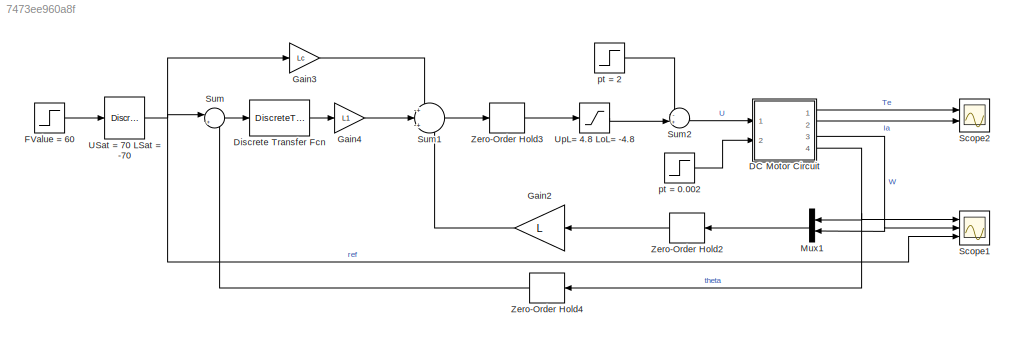
MODEL slx_7473ee960a8f
KIND model
CONFIG AbsTol = auto
CONFIG EnableMultiTasking = off
CONFIG FixedStep = auto
CONFIG MaxStep = auto
CONFIG MinStep = auto
CONFIG RelTol = 1e-3
CONFIG SampleTimeConstraint = Unconstrained
CONFIG SolverName = VariableStepAuto
CONFIG StartTime = 0.0
CONFIG StopTime = 10
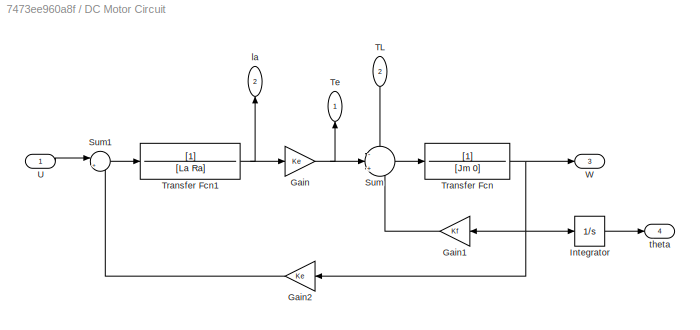
BLOCK [SubSystem] DC Motor Circuit
  Ports = [2, 4]
  RequestExecContextInheritance = off
BLOCK [Gain] DC Motor Circuit/Gain
  Gain = Ke
BLOCK [Gain] DC Motor Circuit/Gain1
  Gain = Kf
  NameLocation = top
BLOCK [Gain] DC Motor Circuit/Gain2
  Gain = Ke
  NameLocation = top
BLOCK [Integrator] DC Motor Circuit/Integrator
  Ports = [1, 1]
BLOCK [Sum] DC Motor Circuit/Sum
  Inputs = -|+|-
  Ports = [3, 1]
BLOCK [Sum] DC Motor Circuit/Sum1
  Inputs = |+-
  Ports = [2, 1]
BLOCK [Inport] DC Motor Circuit/TL
  NameLocation = left
  Port = 2
BLOCK [Outport] DC Motor Circuit/Te
  NameLocation = right
BLOCK [TransferFcn] DC Motor Circuit/Transfer Fcn
  Denominator = [Jm 0]
BLOCK [TransferFcn] DC Motor Circuit/Transfer Fcn1
  Denominator = [La Ra]
BLOCK [Inport] DC Motor Circuit/U
BLOCK [Outport] DC Motor Circuit/W
  Port = 3
BLOCK [Outport] DC Motor Circuit/la
  NameLocation = right
  Port = 2
BLOCK [Outport] DC Motor Circuit/theta
  Port = 4
BLOCK [DiscreteTransferFcn] Discrete Transfer Fcn
  Denominator = [1 -1]
  InputPortMap = u0
  Ports = [1, 1]
  SampleTime = h
BLOCK [Step] FValue = 60
  After = 60
  SampleTime = 0
BLOCK [Gain] Gain2
  Gain = L
  Multiplication = Matrix(K*u) (u vector)
  NameLocation = top
BLOCK [Gain] Gain3
  Gain = Lc
BLOCK [Gain] Gain4
  Gain = L1
BLOCK [Mux] Mux1
  DisplayOption = bar
  Inputs = 2
  NameLocation = top
  Ports = [2, 1]
BLOCK [Scope] Scope1
  Floating = off
  NumInputPorts = 3
  Ports = [3]
  ScopeSpecificationString = Simulink.scopes.TimeScopeBlockCfg('CurrentConfiguration', extmgr.ConfigurationSet(extmgr.Configuration('Core','General UI',true,'FigureColor',[1 1 1]),extmgr.Configuration('Core','Source UI',true),extmgr.Configuration('Sources','WiredSimulink',true,'DataLoggingVariableName','ScopeData1','DataLogging',true,'DataLoggingSaveFormat','StructureWithTime'),extmgr.Configuration('Visuals','Time Domain',tru...<+1642ch>
BLOCK [Scope] Scope2
  Floating = off
  NumInputPorts = 2
  Ports = [2]
  ScopeSpecificationString = Simulink.scopes.TimeScopeBlockCfg('CurrentConfiguration', extmgr.ConfigurationSet(extmgr.Configuration('Core','General UI',true,'FigureColor',[1 1 1]),extmgr.Configuration('Core','Source UI',true),extmgr.Configuration('Sources','WiredSimulink',true,'DataLoggingVariableName','ScopeData2','DataLogging',true,'DataLoggingSaveFormat','StructureWithTime'),extmgr.Configuration('Visuals','Time Domain',tru...<+2074ch>
BLOCK [Sum] Sum
  Inputs = |+-
  Ports = [2, 1]
BLOCK [Sum] Sum1
  Inputs = +|+|-
  Ports = [3, 1]
BLOCK [Sum] Sum2
  Inputs = -+|
  Ports = [2, 1]
BLOCK [DiscreteIntegrator] USat = 70 LSat = -70
  ICPrevOutput = DiscIntNeverNeededParam
  ICPrevScaledInput = DiscIntNeverNeededParam
  InitialConditionSetting = Auto
  LimitOutput = on
  LowerSaturationLimit = -70
  Ports = [1, 1]
  SampleTime = h
  UpperSaturationLimit = 70
BLOCK [Saturate] UpL= 4.8 LoL= -4.8
  LowerLimit = -4.8
  UpperLimit = 4.8
BLOCK [ZeroOrderHold] Zero-Order Hold2
  NameLocation = top
  SampleTime = h
BLOCK [ZeroOrderHold] Zero-Order Hold3
  SampleTime = h
BLOCK [ZeroOrderHold] Zero-Order Hold4
  NameLocation = top
  SampleTime = h
BLOCK [Step] pt = 0.002
  After = 0.002
  SampleTime = 0
  Time = 4
BLOCK [Step] pt = 2
  After = 2
  SampleTime = 0
  Time = 5
LINE DC Motor Circuit/Gain1:1 -> DC Motor Circuit/Sum:3
LINE DC Motor Circuit/Gain2:1 -> DC Motor Circuit/Sum1:2
NET DC Motor Circuit/Gain:1 -> DC Motor Circuit/Sum:2, DC Motor Circuit/Te:1
LINE DC Motor Circuit/Integrator:1 -> DC Motor Circuit/theta:1
LINE DC Motor Circuit/Sum1:1 -> DC Motor Circuit/Transfer Fcn1:1
LINE DC Motor Circuit/Sum:1 -> DC Motor Circuit/Transfer Fcn:1
LINE DC Motor Circuit/TL:1 -> DC Motor Circuit/Sum:1
NET DC Motor Circuit/Transfer Fcn1:1 -> DC Motor Circuit/Gain:1, DC Motor Circuit/la:1
NET DC Motor Circuit/Transfer Fcn:1 -> DC Motor Circuit/Gain1:1, DC Motor Circuit/Gain2:1, DC Motor Circuit/Integrator:1, DC Motor Circuit/W:1
LINE DC Motor Circuit/U:1 -> DC Motor Circuit/Sum1:1
LINE DC Motor Circuit:1 -> Scope2:1
LINE DC Motor Circuit:2 -> Scope2:2
NET DC Motor Circuit:3 -> Mux1:2, Scope1:2
NET DC Motor Circuit:4 -> Mux1:1, Scope1:1, Zero-Order Hold4:1
LINE Discrete Transfer Fcn:1 -> Gain4:1
LINE FValue = 60:1 -> USat = 70 LSat = -70:1
LINE Gain2:1 -> Sum1:3
LINE Gain3:1 -> Sum1:1
LINE Gain4:1 -> Sum1:2
LINE Mux1:1 -> Zero-Order Hold2:1
LINE Sum1:1 -> Zero-Order Hold3:1
LINE Sum2:1 -> DC Motor Circuit:1
LINE Sum:1 -> Discrete Transfer Fcn:1
NET USat = 70 LSat = -70:1 -> Gain3:1, Scope1:3, Sum:1
LINE UpL= 4.8 LoL= -4.8:1 -> Sum2:2
LINE Zero-Order Hold2:1 -> Gain2:1
LINE Zero-Order Hold3:1 -> UpL= 4.8 LoL= -4.8:1
LINE Zero-Order Hold4:1 -> Sum:2
LINE pt = 0.002:1 -> DC Motor Circuit:2
LINE pt = 2:1 -> Sum2:1
note: NET lines group one-source signal fan-out (src -> all destinations, sorted); 1:1 wires keep LINE
